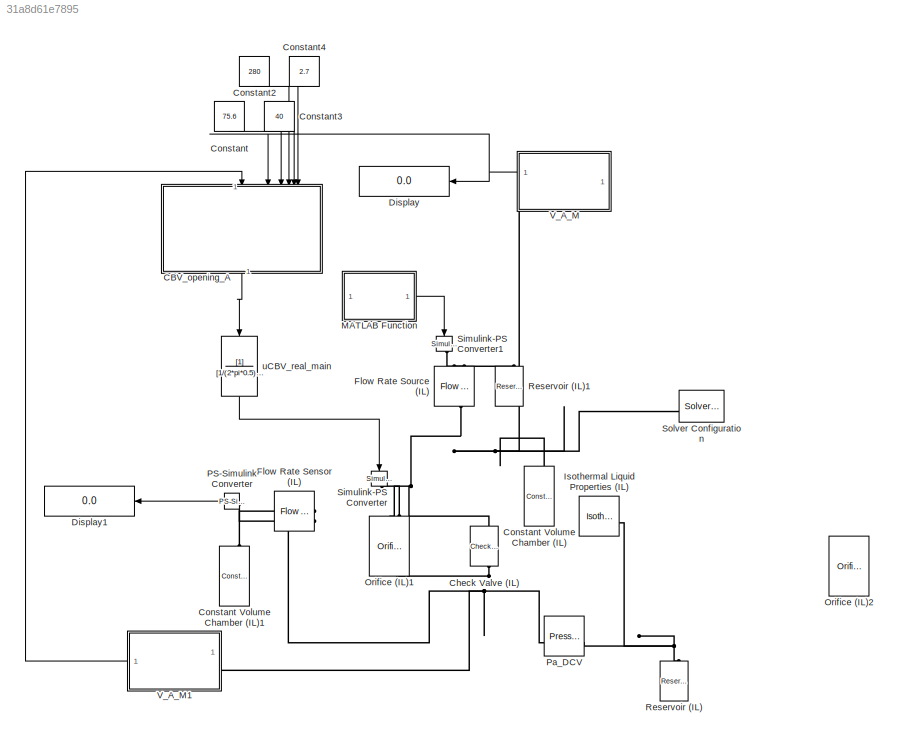
MODEL slx_31a8d61e7895
KIND model
CONFIG AbsTol = auto
CONFIG EnableMultiTasking = off
CONFIG FixedStep = auto
CONFIG MaxStep = auto
CONFIG MinStep = auto
CONFIG RelTol = 1e-3
CONFIG SampleTimeConstraint = Unconstrained
CONFIG SolverName = VariableStepAuto
CONFIG StartTime = 0.0
CONFIG StopTime = 10.0
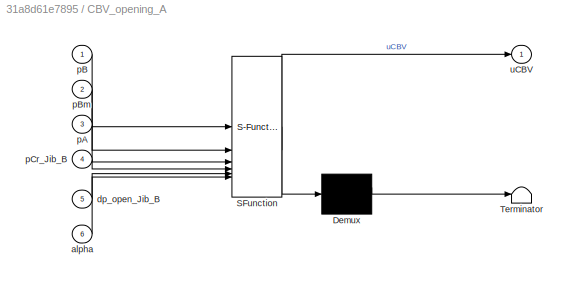
BLOCK [SubSystem] CBV_opening_A
  ErrorFcn = Stateflow.Translate.translate
  NameLocation = right
  PermitHierarchicalResolution = ExplicitOnly
  SFBlockType = MATLAB Function
  TreatAsAtomicUnit = on
BLOCK [Demux] CBV_opening_A/ Demux 
  Outputs = 1
BLOCK [S-Function] CBV_opening_A/ SFunction 
  EnableBusSupport = on
  FunctionName = sf_sfun
  PortCounts = [6 2]
  SFcnIsStateOwnerBlock = off
  SFunctionDeploymentMode = off
  Tag = Stateflow S-Function 3
BLOCK [Terminator] CBV_opening_A/ Terminator 
BLOCK [Inport] CBV_opening_A/alpha
  Port = 6
BLOCK [Inport] CBV_opening_A/dp_open_Jib_B
  Port = 5
BLOCK [Inport] CBV_opening_A/pA
  Port = 3
BLOCK [Inport] CBV_opening_A/pB
BLOCK [Inport] CBV_opening_A/pBm
  Port = 2
BLOCK [Inport] CBV_opening_A/pCr_Jib_B
  Port = 4
BLOCK [Outport] CBV_opening_A/uCBV
BLOCK [Reference] Check Valve (IL)  REF=SimscapeFluids_lib/Isothermal Liquid/Valves & Orifices/Directional Control
Valves/Check Valve (IL)
  NameLocation = right
  SourceBlock = SimscapeFluids_lib/Isothermal Liquid/Valves & Orifices/Directional Control\nValves/Check Valve (IL)
  SourceType = Check Valve (IL)
BLOCK [Constant] Constant
  NameLocation = left
  Value = 75.6
BLOCK [Reference] Constant Volume Chamber (IL)  REF=fl_lib/Isothermal Liquid/Elements/Constant Volume
Chamber (IL)
  NameLocation = right
  SourceBlock = fl_lib/Isothermal Liquid/Elements/Constant Volume\nChamber (IL)
  SourceType = Constant Volume\nChamber (IL)
BLOCK [Reference] Constant Volume Chamber (IL)1  REF=fl_lib/Isothermal Liquid/Elements/Constant Volume
Chamber (IL)
  Commented = on
  NameLocation = right
  SourceBlock = fl_lib/Isothermal Liquid/Elements/Constant Volume\nChamber (IL)
  SourceType = Constant Volume\nChamber (IL)
BLOCK [Constant] Constant2
  NameLocation = left
  Value = 280
BLOCK [Constant] Constant3
  NameLocation = left
  Value = 40
BLOCK [Constant] Constant4
  NameLocation = left
  Value = 2.7
BLOCK [Display] Display
  Decimation = 1
  NameLocation = top
BLOCK [Display] Display1
  Commented = on
  Decimation = 1
  NameLocation = top
BLOCK [Reference] Flow Rate Sensor (IL)  REF=fl_lib/Isothermal Liquid/Sensors/Flow Rate Sensor
(IL)
  Commented = on
  NameLocation = top
  SourceBlock = fl_lib/Isothermal Liquid/Sensors/Flow Rate Sensor\n(IL)
  SourceType = Flow Rate Sensor\n(IL)
BLOCK [Reference] Flow Rate Source (IL)  REF=fl_lib/Isothermal Liquid/Sources/Flow Rate Source
(IL)
  NameLocation = left
  SourceBlock = fl_lib/Isothermal Liquid/Sources/Flow Rate Source\n(IL)
  SourceType = Flow Rate Source\n(IL)
BLOCK [Reference] Isothermal Liquid Properties (IL)  REF=fl_lib/Isothermal Liquid/Utilities/Isothermal Liquid
Properties (IL)
  SourceBlock = fl_lib/Isothermal Liquid/Utilities/Isothermal Liquid\nProperties (IL)
  SourceType = Isothermal Liquid\nProperties (IL)
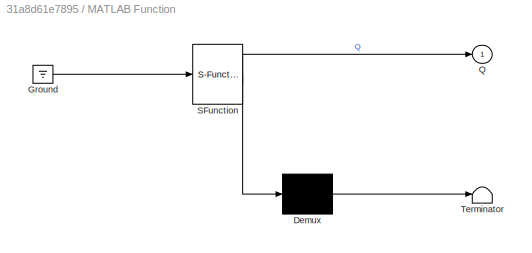
BLOCK [SubSystem] MATLAB Function
  ErrorFcn = Stateflow.Translate.translate
  PermitHierarchicalResolution = ExplicitOnly
  SFBlockType = MATLAB Function
  TreatAsAtomicUnit = on
BLOCK [Demux] MATLAB Function/ Demux 
  Outputs = 1
BLOCK [Ground] MATLAB Function/ Ground 
BLOCK [S-Function] MATLAB Function/ SFunction 
  EnableBusSupport = on
  FunctionName = sf_sfun
  PortCounts = [1 2]
  SFcnIsStateOwnerBlock = off
  SFunctionDeploymentMode = off
  Tag = Stateflow S-Function 2
BLOCK [Terminator] MATLAB Function/ Terminator 
BLOCK [Outport] MATLAB Function/Q
BLOCK [Reference] Orifice (IL)1  REF=SimscapeFluids_lib/Isothermal Liquid/Valves & Orifices/Orifices/Orifice (IL)
  NameLocation = left
  SourceBlock = SimscapeFluids_lib/Isothermal Liquid/Valves & Orifices/Orifices/Orifice (IL)
  SourceType = Orifice (IL)
BLOCK [Reference] Orifice (IL)2  REF=SimscapeFluids_lib/Isothermal Liquid/Valves & Orifices/Orifices/Orifice (IL)
  Commented = on
  NameLocation = left
  SourceBlock = SimscapeFluids_lib/Isothermal Liquid/Valves & Orifices/Orifices/Orifice (IL)
  SourceType = Orifice (IL)
BLOCK [Reference] PS-Simulink Converter  REF=nesl_utility/PS-Simulink
Converter
  Commented = on
  NameLocation = top
  SourceBlock = nesl_utility/PS-Simulink\nConverter
  SourceType = PS-Simulink\nConverter
BLOCK [Reference] Pa_DCV  REF=fl_lib/Isothermal Liquid/Sources/Pressure Source (IL)
  SourceBlock = fl_lib/Isothermal Liquid/Sources/Pressure Source (IL)
  SourceType = Pressure Source (IL)
BLOCK [Reference] Reservoir (IL)  REF=fl_lib/Isothermal Liquid/Elements/Reservoir (IL)
  NameLocation = right
  SourceBlock = fl_lib/Isothermal Liquid/Elements/Reservoir (IL)
  SourceType = Reservoir (IL)
BLOCK [Reference] Reservoir (IL)1  REF=fl_lib/Isothermal Liquid/Elements/Reservoir (IL)
  NameLocation = right
  SourceBlock = fl_lib/Isothermal Liquid/Elements/Reservoir (IL)
  SourceType = Reservoir (IL)
BLOCK [Reference] Simulink-PS Converter  REF=nesl_utility/Simulink-PS
Converter
  NameLocation = left
  SourceBlock = nesl_utility/Simulink-PS\nConverter
  SourceType = Simulink-PS\nConverter
BLOCK [Reference] Simulink-PS Converter1  REF=nesl_utility/Simulink-PS
Converter
  NameLocation = left
  SourceBlock = nesl_utility/Simulink-PS\nConverter
  SourceType = Simulink-PS\nConverter
BLOCK [Reference] Solver Configuration  REF=nesl_utility/Solver
Configuration
  NameLocation = top
  SourceBlock = nesl_utility/Solver\nConfiguration
  SourceType = Solver\nConfiguration
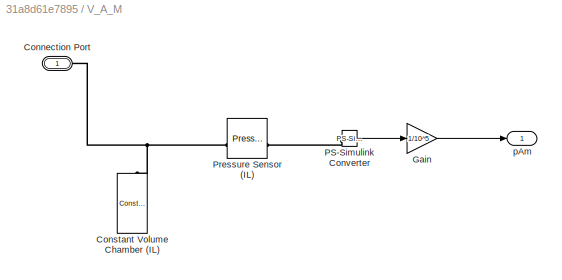
BLOCK [SubSystem] V_A_M
  NameLocation = top
  PortSchema = {"entries":[{"content":{"sides":[{"content":{},"type":"ConnectorPlacement.EquallySpacedRectSide","uuid":"4d44c916-36b4-4891-95d7-b71f690fb118"},{"content":{"connectorIds":["Out1"],"side":"RIGHT"},"type":"ConnectorPlacement.EquallySpacedRectSide","uuid":"b0ccc4ef-865c-4258-9950-e2b42fb6e66f"},{"content":{"side":"TOP"},"type":"ConnectorPlacement.EquallySpacedRectSide","uuid":"000783d9-e516-4133-ab05...<+352ch>
BLOCK [PMIOPort] V_A_M/Connection Port
  Side = Right
BLOCK [Reference] V_A_M/Constant Volume Chamber (IL)  REF=fl_lib/Isothermal Liquid/Elements/Constant Volume
Chamber (IL)
  NameLocation = right
  SourceBlock = fl_lib/Isothermal Liquid/Elements/Constant Volume\nChamber (IL)
  SourceType = Constant Volume\nChamber (IL)
BLOCK [Gain] V_A_M/Gain
  Gain = 1/10^5
BLOCK [Reference] V_A_M/PS-Simulink Converter  REF=nesl_utility/PS-Simulink
Converter
  SourceBlock = nesl_utility/PS-Simulink\nConverter
  SourceType = PS-Simulink\nConverter
BLOCK [Reference] V_A_M/Pressure Sensor (IL)  REF=fl_lib/Isothermal Liquid/Sensors/Pressure Sensor (IL)
  SourceBlock = fl_lib/Isothermal Liquid/Sensors/Pressure Sensor (IL)
  SourceType = Pressure Sensor (IL)
BLOCK [Outport] V_A_M/pAm
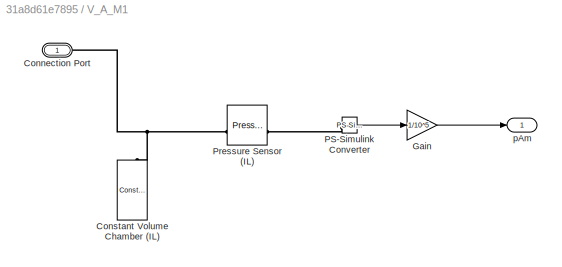
BLOCK [SubSystem] V_A_M1
  NameLocation = top
BLOCK [PMIOPort] V_A_M1/Connection Port
  Side = Left
BLOCK [Reference] V_A_M1/Constant Volume Chamber (IL)  REF=fl_lib/Isothermal Liquid/Elements/Constant Volume
Chamber (IL)
  NameLocation = right
  SourceBlock = fl_lib/Isothermal Liquid/Elements/Constant Volume\nChamber (IL)
  SourceType = Constant Volume\nChamber (IL)
BLOCK [Gain] V_A_M1/Gain
  Gain = 1/10^5
BLOCK [Reference] V_A_M1/PS-Simulink Converter  REF=nesl_utility/PS-Simulink
Converter
  SourceBlock = nesl_utility/PS-Simulink\nConverter
  SourceType = PS-Simulink\nConverter
BLOCK [Reference] V_A_M1/Pressure Sensor (IL)  REF=fl_lib/Isothermal Liquid/Sensors/Pressure Sensor (IL)
  SourceBlock = fl_lib/Isothermal Liquid/Sensors/Pressure Sensor (IL)
  SourceType = Pressure Sensor (IL)
BLOCK [Outport] V_A_M1/pAm
BLOCK [TransferFcn] uCBV_real_main
  Denominator = [1/(2*pi*0.5) 1]
  NameLocation = right
LINE CBV_opening_A:1 -> uCBV_real_main:1
LINE Constant2:1 -> CBV_opening_A:4
LINE Constant3:1 -> CBV_opening_A:5
LINE Constant4:1 -> CBV_opening_A:6
LINE Constant:1 -> CBV_opening_A:3
LINE MATLAB Function:1 -> Simulink-PS Converter1:1
LINE PS-Simulink Converter:1 -> Display1:1
LINE V_A_M/Gain:1 -> V_A_M/pAm:1
LINE V_A_M/PS-Simulink Converter:1 -> V_A_M/Gain:1
LINE V_A_M1/Gain:1 -> V_A_M1/pAm:1
LINE V_A_M1/PS-Simulink Converter:1 -> V_A_M1/Gain:1
LINE V_A_M1:1 -> CBV_opening_A:1
NET V_A_M:1 -> CBV_opening_A:2, Display:1
LINE uCBV_real_main:1 -> Simulink-PS Converter:1
PNET net1: Check Valve (IL):LConn1 -- Flow Rate Sensor (IL):LConn1 -- Orifice (IL)1:RConn1 -- Pa_DCV:RConn1 -- V_A_M1:LConn1
PNET net2: Check Valve (IL):RConn1 -- Constant Volume Chamber (IL):LConn1 -- Flow Rate Source (IL):RConn1 -- Orifice (IL)1:LConn1 -- Solver Configuration:RConn1 -- V_A_M:RConn1
PLINE Constant Volume Chamber (IL)1:LConn1 -- Flow Rate Sensor (IL):RConn1
PLINE Flow Rate Sensor (IL):RConn2 -- PS-Simulink Converter:LConn1
PLINE Flow Rate Source (IL):LConn1 -- Reservoir (IL)1:LConn1
PLINE Flow Rate Source (IL):LConn2 -- Simulink-PS Converter1:RConn1
PNET net3: Isothermal Liquid Properties (IL):RConn1 -- Pa_DCV:LConn1 -- Reservoir (IL):LConn1
PLINE Orifice (IL)1:LConn2 -- Simulink-PS Converter:RConn1
PNET net4: V_A_M/Connection Port:RConn1 -- V_A_M/Constant Volume Chamber (IL):LConn1 -- V_A_M/Pressure Sensor (IL):LConn1
PLINE V_A_M/PS-Simulink Converter:LConn1 -- V_A_M/Pressure Sensor (IL):RConn1
PNET net5: V_A_M1/Connection Port:RConn1 -- V_A_M1/Constant Volume Chamber (IL):LConn1 -- V_A_M1/Pressure Sensor (IL):LConn1
PLINE V_A_M1/PS-Simulink Converter:LConn1 -- V_A_M1/Pressure Sensor (IL):RConn1
note: NET lines group one-source signal fan-out (src -> all destinations, sorted); 1:1 wires keep LINE; PNET lines group multi-terminal physical nets as a canonical sorted terminal list (undirected conserving connections); 2-terminal nets keep the pairwise PLINE form
CHART MATLAB Function states=1 transitions=1
  STATE_LABEL 'eML_blk_kernel()'
  STATE_LABEL 'SCRIPT:\nfunction Q = fcn()\np_max = 0.52; % position\np_min = 0.45; % position\nt_max = 226.4; % tid\nt_min = 215.5; % tid\n\nAreal_A_side_main = 9817.5/1e6; % m^2\n\nv = (p_max-p_min)/(t_max-t_min); % m/s hastighet\nQ = v*Areal_A_side_main;% m^3/s\n'
CHART CBV_opening_A states=1 transitions=1
  STATE_LABEL 'eML_blk_kernel()'
  STATE_LABEL 'SCRIPT:\nfunction uCBV = fcn(pB,pBm,pA,pCr_Jib_B, dp_open_Jib_B, alpha)\n\nuCBV = (alpha*pA + pBm - pCr_Jib_B - (alpha + 1)*pB)/dp_open_Jib_B;\n%uCBV = (alpha*pB + pAm - pCr)/dpopen; %vented\n%uCBV = 0.25;\nif uCBV < 0\n    uCBV = 0;\nelseif uCBV > 1\n    uCBV = 1;\nend\n\n'
CHART  states=0 transitions=0
CHART  states=0 transitions=0
